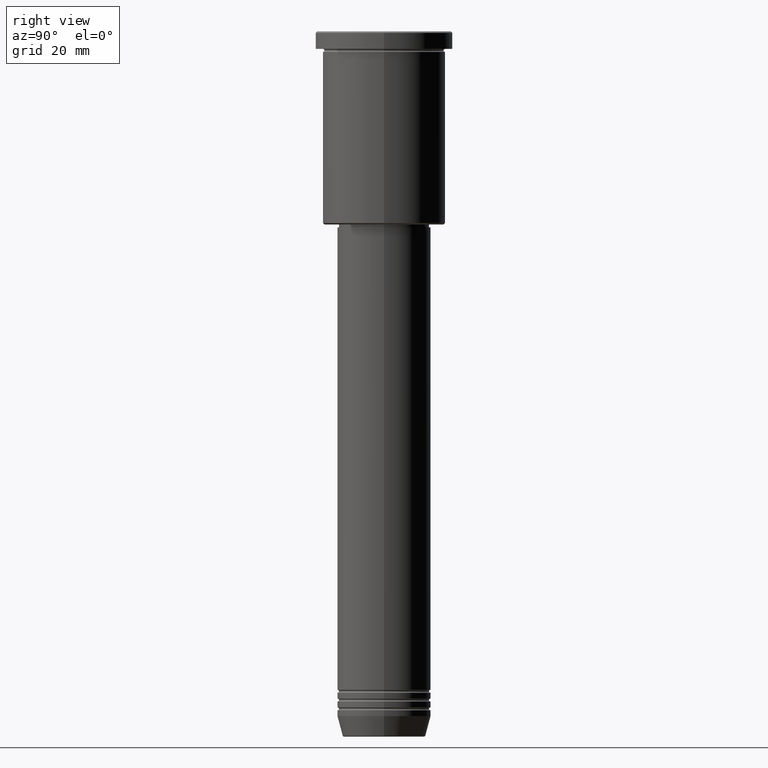
[diagram: clean part render]
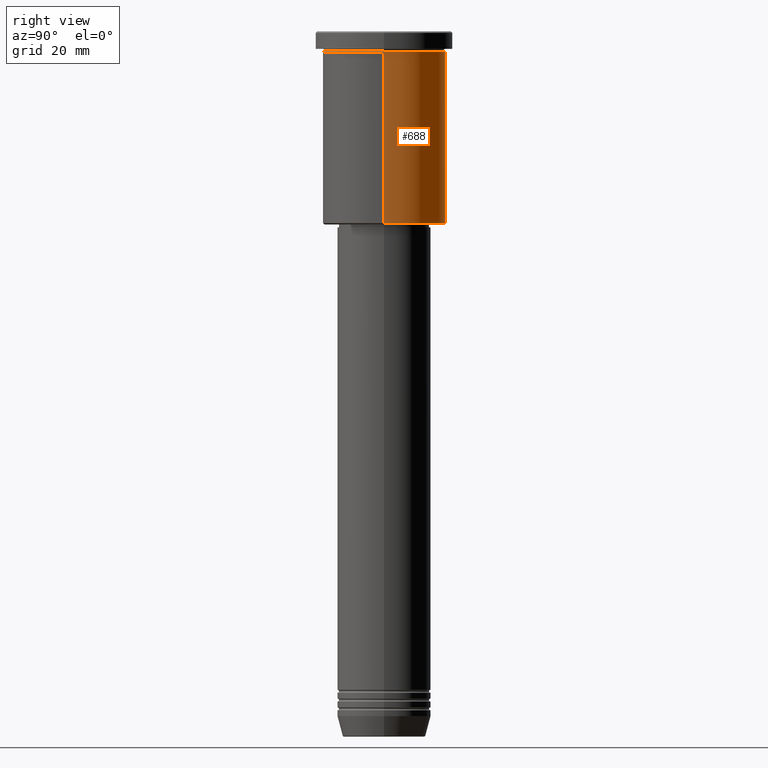
[diagram: same view with one face highlighted and labeled with its STEP entity id]
A machine part, right view. The second image highlights one B-rep face of the part: STEP entity #688.
In plain terms, the highlighted cylindrical surface (partial cylindrical patch) has radius 21 mm, axis along (-0, -0, 1).
Its self-contained STEP definition (entity closure, byte-faithful):
#42 = VECTOR ( 'NONE', #887, 1000.000000000000000 ) ;
#153 = CARTESIAN_POINT ( 'NONE',  ( 21.00000000000000000, 0.000000000000000000, -6.999999999999994671 ) ) ;
#214 = VERTEX_POINT ( 'NONE', #352 ) ;
#282 = DIRECTION ( 'NONE',  ( -0.000000000000000000, -0.000000000000000000, 1.000000000000000000 ) ) ;
#335 = EDGE_CURVE ( 'NONE', #214, #1048, #1105, .T. ) ;
#352 = CARTESIAN_POINT ( 'NONE',  ( -21.00000000000000000, 2.571758278209441661E-15, -65.49999999999994316 ) ) ;
#357 = ORIENTED_EDGE ( 'NONE', *, *, #1128, .F. ) ;
#361 = ORIENTED_EDGE ( 'NONE', *, *, #335, .T. ) ;
#444 = DIRECTION ( 'NONE',  ( -0.000000000000000000, -0.000000000000000000, 1.000000000000000000 ) ) ;
#534 = EDGE_LOOP ( 'NONE', ( #810, #361, #685, #357 ) ) ;
#575 = VECTOR ( 'NONE', #282, 1000.000000000000000 ) ;
#620 = AXIS2_PLACEMENT_3D ( 'NONE', #1169, #444, #802 ) ;
#623 = CARTESIAN_POINT ( 'NONE',  ( -21.00000000000000000, 2.571758278209441661E-15, 0.000000000000000000 ) ) ;
#644 = DIRECTION ( 'NONE',  ( -0.000000000000000000, -0.000000000000000000, 1.000000000000000000 ) ) ;
#666 = VERTEX_POINT ( 'NONE', #1020 ) ;
#685 = ORIENTED_EDGE ( 'NONE', *, *, #837, .F. ) ;
#688 = ADVANCED_FACE ( 'NONE', ( #1002 ), #726, .T. ) ;
#692 = AXIS2_PLACEMENT_3D ( 'NONE', #1103, #831, #835 ) ;
#726 = CYLINDRICAL_SURFACE ( 'NONE', #692, 21.00000000000000000 ) ;
#802 = DIRECTION ( 'NONE',  ( 1.000000000000000000, 0.000000000000000000, 0.000000000000000000 ) ) ;
#810 = ORIENTED_EDGE ( 'NONE', *, *, #852, .T. ) ;
#831 = DIRECTION ( 'NONE',  ( -0.000000000000000000, -0.000000000000000000, 1.000000000000000000 ) ) ;
#835 = DIRECTION ( 'NONE',  ( 1.000000000000000000, 0.000000000000000000, 0.000000000000000000 ) ) ;
#837 = EDGE_CURVE ( 'NONE', #992, #1048, #980, .T. ) ;
#852 = EDGE_CURVE ( 'NONE', #666, #214, #863, .T. ) ;
#863 = CIRCLE ( 'NONE', #982, 21.00000000000000000 ) ;
#887 = DIRECTION ( 'NONE',  ( -0.000000000000000000, -0.000000000000000000, 1.000000000000000000 ) ) ;
#898 = CARTESIAN_POINT ( 'NONE',  ( 0.000000000000000000, 0.000000000000000000, -65.49999999999994316 ) ) ;
#913 = LINE ( 'NONE', #1096, #575 ) ;
#980 = CIRCLE ( 'NONE', #620, 21.00000000000000000 ) ;
#982 = AXIS2_PLACEMENT_3D ( 'NONE', #898, #644, #1087 ) ;
#992 = VERTEX_POINT ( 'NONE', #153 ) ;
#1002 = FACE_OUTER_BOUND ( 'NONE', #534, .T. ) ;
#1020 = CARTESIAN_POINT ( 'NONE',  ( 21.00000000000000000, 0.000000000000000000, -65.49999999999994316 ) ) ;
#1048 = VERTEX_POINT ( 'NONE', #1068 ) ;
#1068 = CARTESIAN_POINT ( 'NONE',  ( -21.00000000000000000, 2.571758278209441661E-15, -6.999999999999994671 ) ) ;
#1087 = DIRECTION ( 'NONE',  ( -1.000000000000000000, 0.000000000000000000, 0.000000000000000000 ) ) ;
#1096 = CARTESIAN_POINT ( 'NONE',  ( 21.00000000000000000, 0.000000000000000000, 0.000000000000000000 ) ) ;
#1103 = CARTESIAN_POINT ( 'NONE',  ( 0.000000000000000000, 0.000000000000000000, 0.000000000000000000 ) ) ;
#1105 = LINE ( 'NONE', #623, #42 ) ;
#1128 = EDGE_CURVE ( 'NONE', #666, #992, #913, .T. ) ;
#1169 = CARTESIAN_POINT ( 'NONE',  ( 0.000000000000000000, 0.000000000000000000, -6.999999999999994671 ) ) ;